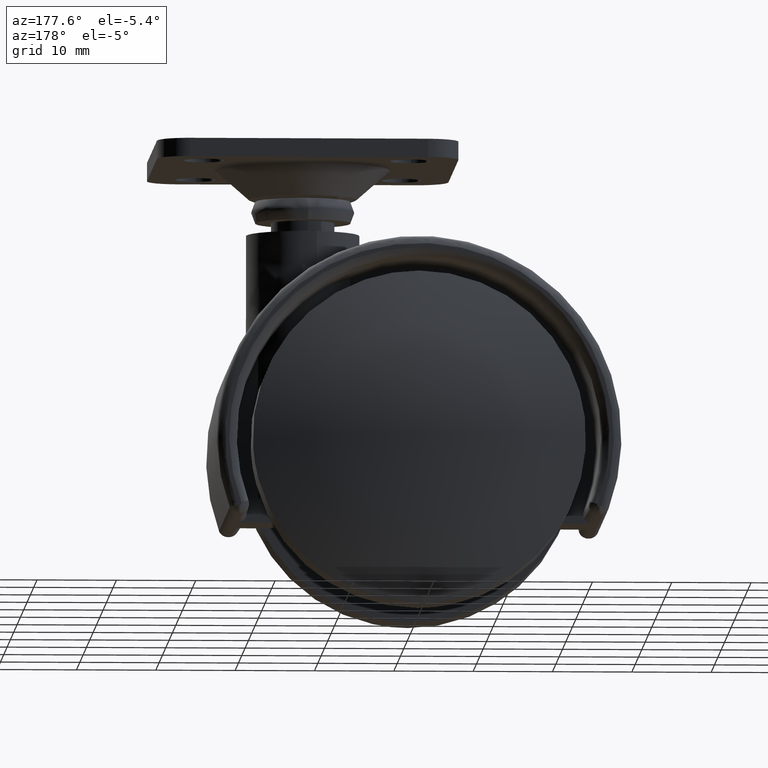
[diagram: clean part render]
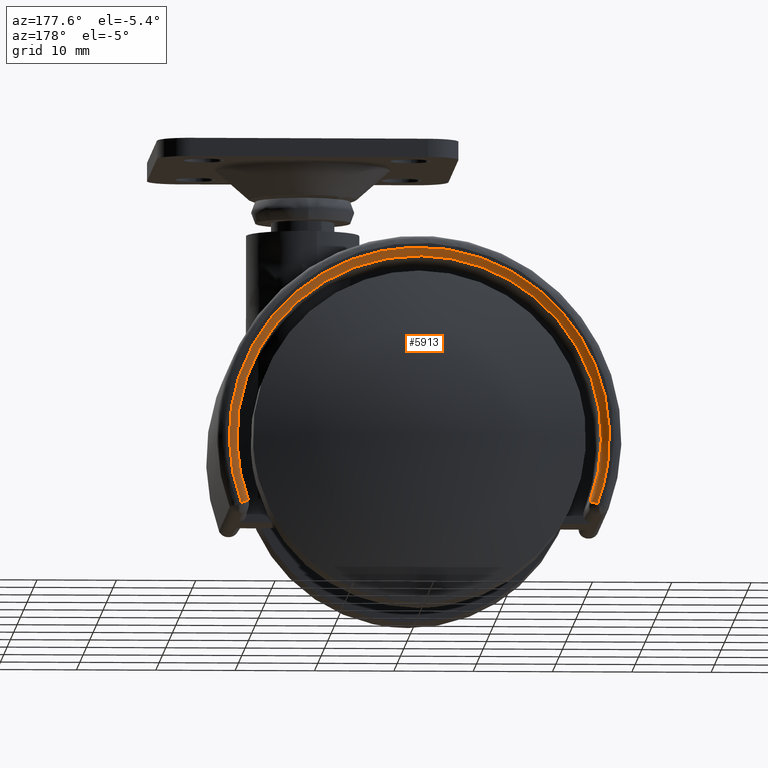
[diagram: same view with one face highlighted and labeled with its STEP entity id]
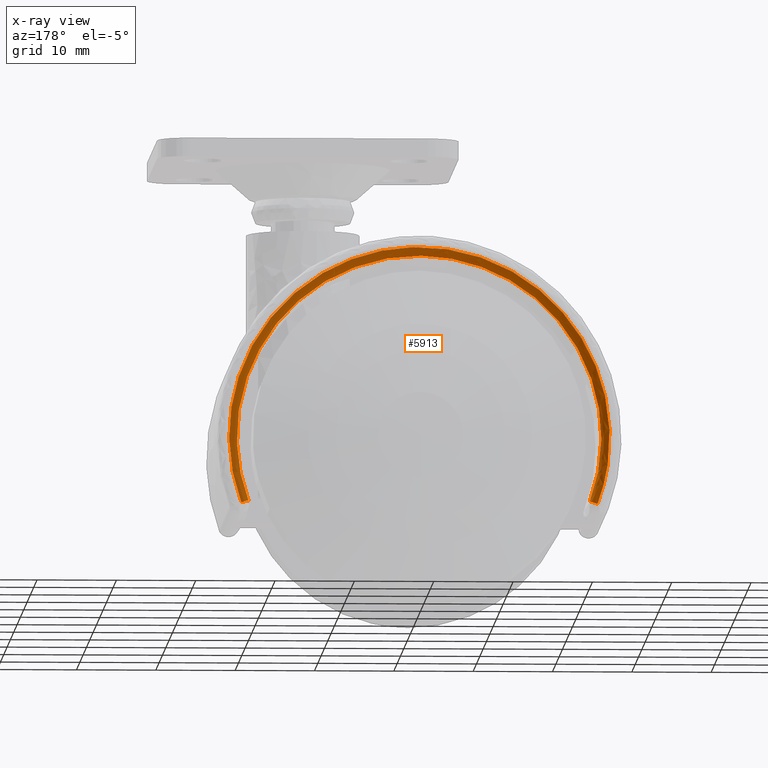
[diagram: x-ray of the same camera — body ghosted, the highlighted face saturated]
A machine part, auxiliary view. The second image highlights one B-rep face of the part: STEP entity #5913.
The next image is the same camera in x-ray: the body ghosted, the highlighted face saturated — about 0% of this face is hidden behind the body in this view.
In plain terms, the highlighted face is a freeform B-spline surface patch.
Its self-contained STEP definition (entity closure, byte-faithful):
#5702=CARTESIAN_POINT('',(-22.441991479779251,17.050000000000001,-8.429698191307280));
#5703=VERTEX_POINT('',#5702);
#5704=CARTESIAN_POINT('',(-21.506185383351799,16.076614699930548,-8.078189147843951));
#5705=VERTEX_POINT('',#5704);
#5706=CARTESIAN_POINT('',(-22.441991479779251,17.050000000000001,-8.429698191307280));
#5707=CARTESIAN_POINT('',(-21.530445895548954,17.050000000000008,-8.087301921813831));
#5708=CARTESIAN_POINT('',(-21.506185383351799,16.076614699930548,-8.078189147843951));
#5716=(BOUNDED_CURVE()B_SPLINE_CURVE(2,(#5706,#5707,#5708),.UNSPECIFIED.,.F.,.U.)CURVE()GEOMETRIC_REPRESENTATION_ITEM()QUASI_UNIFORM_CURVE()RATIONAL_B_SPLINE_CURVE((1.0,0.716454708942078,1.0))REPRESENTATION_ITEM(''));
#5717=EDGE_CURVE('',#5703,#5705,#5716,.T.);
#5830=CARTESIAN_POINT('',(20.372756816571712,16.008096280601631,-10.618286624093397));
#5831=CARTESIAN_POINT('',(29.025471645428290,16.008096280601634,5.983229350381444));
#5832=CARTESIAN_POINT('',(14.512735822714145,16.008096280601631,17.809484273237096));
#5833=CARTESIAN_POINT('',(0.0,16.008096280601634,29.635739196092750));
#5834=CARTESIAN_POINT('',(-14.512735822714145,16.008096280601631,17.809484273237096));
#5835=CARTESIAN_POINT('',(-29.025471645428290,16.008096280601634,5.983229350381444));
#5836=CARTESIAN_POINT('',(-20.372756816571712,16.008096280601631,-10.618286624093397));
#5837=CARTESIAN_POINT('',(20.331235206494696,17.124506328907749,-10.596645549158806));
#5838=CARTESIAN_POINT('',(28.966314982105107,17.124506328907749,5.971034961653168));
#5839=CARTESIAN_POINT('',(14.483157491052557,17.124506328907749,17.773186855645349));
#5840=CARTESIAN_POINT('',(0.0,17.124506328907749,29.575338749637538));
#5841=CARTESIAN_POINT('',(-14.483157491052557,17.124506328907749,17.773186855645349));
#5842=CARTESIAN_POINT('',(-28.966314982105107,17.124506328907749,5.971034961653168));
#5843=CARTESIAN_POINT('',(-20.331235206494696,17.124506328907749,-10.596645549158806));
#5844=CARTESIAN_POINT('',(21.319768585804905,17.047630517354747,-11.111869426491957));
#5845=CARTESIAN_POINT('',(30.374698139576889,17.047630517354744,6.261355117249857));
#5846=CARTESIAN_POINT('',(15.187349069788445,17.047630517354747,18.637344310176719));
#5847=CARTESIAN_POINT('',(0.0,17.047630517354744,31.013333503103571));
#5848=CARTESIAN_POINT('',(-15.187349069788445,17.047630517354747,18.637344310176719));
#5849=CARTESIAN_POINT('',(-30.374698139576889,17.047630517354744,6.261355117249857));
#5850=CARTESIAN_POINT('',(-21.319768585804905,17.047630517354747,-11.111869426491957));
#5858=(BOUNDED_SURFACE()B_SPLINE_SURFACE(2,2,((#5830,#5837,#5844),(#5831,#5838,#5845),(#5832,#5839,#5846),(#5833,#5840,#5847),(#5834,#5841,#5848),(#5835,#5842,#5849),(#5836,#5843,#5850)),.UNSPECIFIED.,.F.,.F.,.U.)B_SPLINE_SURFACE_WITH_KNOTS((3,2,2,3),(3,3),(0.0,34.221017567115332,68.442035134230665,102.663052701346000),(0.0,1.788165787819900),.UNSPECIFIED.)GEOMETRIC_REPRESENTATION_ITEM()RATIONAL_B_SPLINE_SURFACE(((0.919167493766329,0.611501322971375,0.914756185316443),(0.712545245815841,0.474040219490312,0.709125567808175),(0.919167493766329,0.611501322971375,0.914756185316443),(0.712545245815841,0.474040219490312,0.709125567808175),(0.919167493766329,0.611501322971375,0.914756185316443),(0.712545245815841,0.474040219490312,0.709125567808175),(0.919167493766329,0.611501322971375,0.914756185316443)))REPRESENTATION_ITEM('')SURFACE());
#5859=CARTESIAN_POINT('',(22.441991479779350,17.050000000000001,-8.429698191307320));
#5860=VERTEX_POINT('',#5859);
#5861=CARTESIAN_POINT('',(21.506185383351699,16.076614699930548,-8.078189147843951));
#5862=VERTEX_POINT('',#5861);
#5863=CARTESIAN_POINT('',(22.441991479779350,17.050000000000001,-8.429698191307320));
#5864=CARTESIAN_POINT('',(21.530445895549050,17.049999999999997,-8.087301921813864));
#5865=CARTESIAN_POINT('',(21.506185383351738,16.076614699930548,-8.078189147843958));
#5873=(BOUNDED_CURVE()B_SPLINE_CURVE(2,(#5863,#5864,#5865),.UNSPECIFIED.,.F.,.U.)CURVE()GEOMETRIC_REPRESENTATION_ITEM()QUASI_UNIFORM_CURVE()RATIONAL_B_SPLINE_CURVE((1.0,0.716454708942076,1.0))REPRESENTATION_ITEM(''));
#5874=EDGE_CURVE('',#5860,#5862,#5873,.T.);
#5875=ORIENTED_EDGE('',*,*,#5874,.T.);
#5876=CARTESIAN_POINT('',(-21.506185383351799,16.076614699930548,-8.078189147843951));
#5877=CARTESIAN_POINT('',(-27.563180549013467,16.076614699930559,8.047065969951223));
#5878=CARTESIAN_POINT('',(-13.781590274506730,16.076614699930548,18.380449373098980));
#5879=CARTESIAN_POINT('',(1.734723E-014,16.076614699930559,28.713832776246743));
#5880=CARTESIAN_POINT('',(13.781590274506749,16.076614699930548,18.380449373098969));
#5881=CARTESIAN_POINT('',(27.563180549013495,16.076614699930559,8.047065969951188));
#5882=CARTESIAN_POINT('',(21.506185383351689,16.076614699930548,-8.078189147843945));
#5890=(BOUNDED_CURVE()B_SPLINE_CURVE(2,(#5876,#5877,#5878,#5879,#5880,#5881,#5882),.UNSPECIFIED.,.F.,.U.)B_SPLINE_CURVE_WITH_KNOTS((3,2,2,3),(0.0,0.333333333333333,0.666666666666667,1.0),.UNSPECIFIED.)CURVE()GEOMETRIC_REPRESENTATION_ITEM()RATIONAL_B_SPLINE_CURVE((1.0,0.800078277175463,1.0,0.800078277175463,1.0,0.800078277175463,1.0))REPRESENTATION_ITEM(''));
#5891=EDGE_CURVE('',#5705,#5862,#5890,.T.);
#5892=ORIENTED_EDGE('',*,*,#5891,.F.);
#5893=ORIENTED_EDGE('',*,*,#5717,.F.);
#5894=CARTESIAN_POINT('',(22.441991479779350,17.050000000000001,-8.429698191307320));
#5895=CARTESIAN_POINT('',(28.762546774818848,17.050000000000001,8.397220739790782));
#5896=CARTESIAN_POINT('',(14.381273387409429,17.050000000000001,19.180244235452360));
#5897=CARTESIAN_POINT('',(5.204170E-015,17.050000000000001,29.963267731113945));
#5898=CARTESIAN_POINT('',(-14.381273387409420,17.050000000000001,19.180244235452371));
#5899=CARTESIAN_POINT('',(-28.762546774818848,17.050000000000001,8.397220739790791));
#5900=CARTESIAN_POINT('',(-22.441991479779261,17.050000000000001,-8.429698191307292));
#5908=(BOUNDED_CURVE()B_SPLINE_CURVE(2,(#5894,#5895,#5896,#5897,#5898,#5899,#5900),.UNSPECIFIED.,.F.,.U.)B_SPLINE_CURVE_WITH_KNOTS((3,2,2,3),(0.0,0.333333333333333,0.666666666666667,1.0),.UNSPECIFIED.)CURVE()GEOMETRIC_REPRESENTATION_ITEM()RATIONAL_B_SPLINE_CURVE((1.0,0.800078277175463,1.0,0.800078277175463,1.0,0.800078277175463,1.0))REPRESENTATION_ITEM(''));
#5909=EDGE_CURVE('',#5860,#5703,#5908,.T.);
#5910=ORIENTED_EDGE('',*,*,#5909,.F.);
#5911=EDGE_LOOP('',(#5875,#5892,#5893,#5910));
#5912=FACE_OUTER_BOUND('',#5911,.T.);
#5913=ADVANCED_FACE('',(#5912),#5858,.T.);